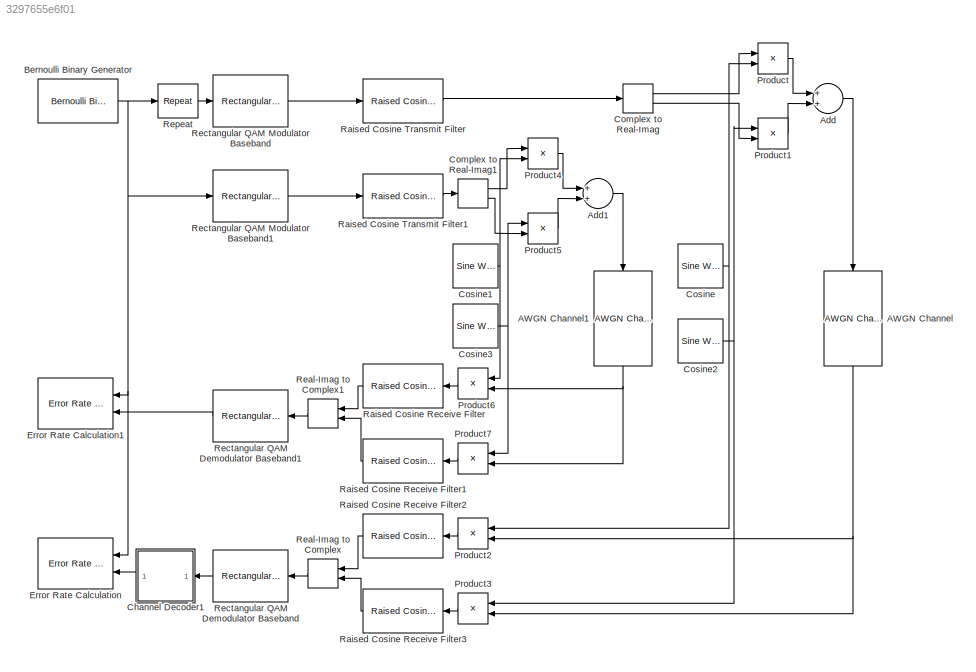
MODEL slx_3297655e6f01
KIND model
CONFIG AbsTol = auto
CONFIG FixedStep = auto
CONFIG InitFcn = BitRate = 4e6;\nM = 16;\nl = log2(M);\nSymbolRate = BitRate / l;\nUpsampleCnt = 8;\nSampleRate = SymbolRate * UpsampleCnt;\nFc = 2.5e6;\nFs = SampleRate;\n\n\nSamplePerFrame = 4000;\nSymbolPerFrame = SamplePerFrame / l;\n\n
CONFIG MaxStep = auto
CONFIG MinStep = auto
CONFIG RelTol = 1e-3
CONFIG SampleTimeConstraint = Unconstrained
CONFIG Solver = VariableStepDiscrete
CONFIG SolverMode = Auto
CONFIG SolverName = VariableStepDiscrete
CONFIG StartTime = 0.0
CONFIG StopTime = 1
BLOCK [Reference] AWGN Channel  REF=commchan3/AWGN
Channel
  EbNodB = 10
  EsNodB = 10
  InputProcessing = Columns as channels (frame based)
  Ports = [1, 1]
  Ps = 1
  SNRdB = SNR
  SourceBlock = commchan3/AWGN\nChannel
  SourceType = AWGN Channel
  Tsym = 4e-6
  UserDataPersistent = on
  bitsPerSym = 4
  noiseMode = Signal to noise ratio  (SNR)
  seed = 67
  variance = 1
BLOCK [Reference] AWGN Channel1  REF=commchan3/AWGN
Channel
  EbNodB = 10
  EsNodB = 10
  InputProcessing = Columns as channels (frame based)
  Ports = [1, 1]
  Ps = 1
  SNRdB = SNR
  SourceBlock = commchan3/AWGN\nChannel
  SourceType = AWGN Channel
  Tsym = 4e-6
  UserDataPersistent = on
  bitsPerSym = 4
  noiseMode = Signal to noise ratio  (SNR)
  seed = 67
  variance = 1
BLOCK [Sum] Add
  InputSameDT = off
  OutDataTypeStr = Inherit: Inherit via internal rule
  Ports = [2, 1]
  SaturateOnIntegerOverflow = off
BLOCK [Sum] Add1
  InputSameDT = off
  OutDataTypeStr = Inherit: Inherit via internal rule
  Ports = [2, 1]
  SaturateOnIntegerOverflow = off
BLOCK [Reference] Bernoulli Binary Generator  REF=commrandsrc2/Bernoulli Binary
Generator
  P = 0.5
  Ports = [0, 1]
  SourceBlock = commrandsrc2/Bernoulli Binary\nGenerator
  SourceType = Bernoulli Binary Generator
  Ts = 1/BitRate
  frameBased = on
  orient = off
  outDataType = double
  sampPerFrame = SamplePerFrame
  seed = 61
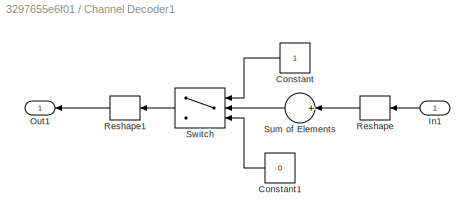
BLOCK [SubSystem] Channel Decoder1
  Ports = [1, 1]
  RequestExecContextInheritance = off
BLOCK [Constant] Channel Decoder1/Constant
BLOCK [Constant] Channel Decoder1/Constant1
  Value = 0
BLOCK [Inport] Channel Decoder1/In1
  IconDisplay = Port number
BLOCK [Outport] Channel Decoder1/Out1
  IconDisplay = Port number
BLOCK [Reshape] Channel Decoder1/Reshape
  OutputDimensionality = Customize
  OutputDimensions = [3,4000]
  Ports = [1, 1]
BLOCK [Reshape] Channel Decoder1/Reshape1
  OutputDimensionality = Column vector (2-D)
  OutputDimensions = [3,4000]
  Ports = [1, 1]
BLOCK [Sum] Channel Decoder1/Sum of Elements
  CollapseMode = Specified dimension
  InputSameDT = off
  Inputs = +
  OutDataTypeStr = Inherit: Inherit via internal rule
  Ports = [1, 1]
  SaturateOnIntegerOverflow = off
BLOCK [Switch] Channel Decoder1/Switch
  Criteria = u2 > Threshold
  InputSameDT = off
  SaturateOnIntegerOverflow = off
  Threshold = 1
BLOCK [ComplexToRealImag] Complex to Real-Imag
  Ports = [1, 2]
BLOCK [ComplexToRealImag] Complex to Real-Imag1
  Ports = [1, 2]
BLOCK [Reference] Cosine  REF=dspsrcs4/Sine Wave
  Amplitude = sqrt(2)
  CompMethod = Trigonometric fcn
  Frequency = Fc
  LastOutDataTypeStr = double
  OutComplex = Real
  OutDataTypeStr = double
  Phase = pi/2
  Ports = [0, 1]
  ResetState = Restart at time zero
  SampleMode = Discrete
  SampleTime = 1/Fs
  SamplesPerFrame = SymbolPerFrame * UpsampleCnt * 3
  SourceBlock = dspsrcs4/Sine Wave
  SourceType = Sine Wave
  TableSize = Speed
  additionalParams = off
  allowOverrides = on
  dataType = double
  fracBitsMode = Best precision
  numFracBits = 15
  udDataType = sfix(16)
  wordLen = 16
BLOCK [Reference] Cosine1  REF=dspsrcs4/Sine Wave
  Amplitude = sqrt(2)
  CompMethod = Trigonometric fcn
  Frequency = Fc
  LastOutDataTypeStr = double
  OutComplex = Real
  OutDataTypeStr = double
  Phase = pi/2
  Ports = [0, 1]
  ResetState = Restart at time zero
  SampleMode = Discrete
  SampleTime = 1/Fs
  SamplesPerFrame = SymbolPerFrame * UpsampleCnt
  SourceBlock = dspsrcs4/Sine Wave
  SourceType = Sine Wave
  TableSize = Speed
  additionalParams = off
  allowOverrides = on
  dataType = double
  fracBitsMode = Best precision
  numFracBits = 15
  udDataType = sfix(16)
  wordLen = 16
BLOCK [Reference] Cosine2  REF=dspsrcs4/Sine Wave
  Amplitude = sqrt(2)
  CompMethod = Trigonometric fcn
  Frequency = Fc
  LastOutDataTypeStr = double
  OutComplex = Real
  OutDataTypeStr = double
  Phase = 0
  Ports = [0, 1]
  ResetState = Restart at time zero
  SampleMode = Discrete
  SampleTime = 1/Fs
  SamplesPerFrame = SymbolPerFrame * UpsampleCnt * 3
  SourceBlock = dspsrcs4/Sine Wave
  SourceType = Sine Wave
  TableSize = Speed
  additionalParams = off
  allowOverrides = on
  dataType = double
  fracBitsMode = Best precision
  numFracBits = 15
  udDataType = sfix(16)
  wordLen = 16
BLOCK [Reference] Cosine3  REF=dspsrcs4/Sine Wave
  Amplitude = sqrt(2)
  CompMethod = Trigonometric fcn
  Frequency = Fc
  LastOutDataTypeStr = double
  OutComplex = Real
  OutDataTypeStr = double
  Phase = 0
  Ports = [0, 1]
  ResetState = Restart at time zero
  SampleMode = Discrete
  SampleTime = 1/Fs
  SamplesPerFrame = SymbolPerFrame * UpsampleCnt
  SourceBlock = dspsrcs4/Sine Wave
  SourceType = Sine Wave
  TableSize = Speed
  additionalParams = off
  allowOverrides = on
  dataType = double
  fracBitsMode = Best precision
  numFracBits = 15
  udDataType = sfix(16)
  wordLen = 16
BLOCK [Reference] Error Rate Calculation  REF=commsink2/Error Rate
Calculation
  N = 6 * UpsampleCnt / 3
  PMode = Workspace
  Ports = [2]
  RsMode2 = off
  SourceBlock = commsink2/Error Rate\nCalculation
  SourceType = Error Rate Calculation
  WsName = ErrorVecChannelCoding
  cp_mode = Entire frame
  maxBits = 1e6
  numErr = 100
  st_delay = 0
  stop = off
  subframe = []
BLOCK [Reference] Error Rate Calculation1  REF=commsink2/Error Rate
Calculation
  N = 6 * UpsampleCnt
  PMode = Workspace
  Ports = [2]
  RsMode2 = off
  SourceBlock = commsink2/Error Rate\nCalculation
  SourceType = Error Rate Calculation
  WsName = ErrorVecNoChannelCoding
  cp_mode = Entire frame
  maxBits = 1e6
  numErr = 100
  st_delay = 0
  stop = off
  subframe = []
BLOCK [Product] Product
  InputSameDT = off
  OutDataTypeStr = Inherit: Inherit via internal rule
  Ports = [2, 1]
  SaturateOnIntegerOverflow = off
BLOCK [Product] Product1
  InputSameDT = off
  OutDataTypeStr = Inherit: Inherit via internal rule
  Ports = [2, 1]
  SaturateOnIntegerOverflow = off
BLOCK [Product] Product2
  InputSameDT = off
  OutDataTypeStr = Inherit: Inherit via internal rule
  Ports = [2, 1]
  SaturateOnIntegerOverflow = off
BLOCK [Product] Product3
  InputSameDT = off
  OutDataTypeStr = Inherit: Inherit via internal rule
  Ports = [2, 1]
  SaturateOnIntegerOverflow = off
BLOCK [Product] Product4
  InputSameDT = off
  OutDataTypeStr = Inherit: Inherit via internal rule
  Ports = [2, 1]
  SaturateOnIntegerOverflow = off
BLOCK [Product] Product5
  InputSameDT = off
  OutDataTypeStr = Inherit: Inherit via internal rule
  Ports = [2, 1]
  SaturateOnIntegerOverflow = off
BLOCK [Product] Product6
  InputSameDT = off
  OutDataTypeStr = Inherit: Inherit via internal rule
  Ports = [2, 1]
  SaturateOnIntegerOverflow = off
BLOCK [Product] Product7
  InputSameDT = off
  OutDataTypeStr = Inherit: Inherit via internal rule
  Ports = [2, 1]
  SaturateOnIntegerOverflow = off
BLOCK [Reference] Raised Cosine Receive Filter  REF=commfilt2/Raised Cosine
Receive Filter
  D = (12)/2
  InputProcessing = Columns as channels (frame based)
  LockScale = off
  N = UpsampleCnt
  Ports = [1, 1]
  R = 0.2
  SourceBlock = commfilt2/Raised Cosine\nReceive Filter
  SourceType = Raised Cosine Receive Filter
  UserDataPersistent = on
  accumFracLength = 30
  accumMode = Same as product output
  accumWordLength = 32
  checkCoeff = off
  checkGain = Normalized
  coeffFracLength = 15
  coeffMode = Same word length as input
  coeffWordLength = 16
  currentFiltSpan = 12
  downFactor = UpsampleCnt
  downOffset = 0
  filtSpan = 12
  filtType = Square root
  filterGain = 1/sqrt(UpsampleCnt)
  framing = Enforce single-rate processing
  launchFVT = on
  outputFracLength = 15
  outputMode = Same as accumulator
  outputWordLength = 16
  overflowMode = off
  prodOutputFracLength = 30
  prodOutputMode = Same as input
  prodOutputWordLength = 32
  rateMode = Downsampling
  roundingMode = Floor
  sampMode = Mute
  saveAsFlag = 0
  variableName = rcRxFilt2
BLOCK [Reference] Raised Cosine Receive Filter1  REF=commfilt2/Raised Cosine
Receive Filter
  D = (12)/2
  InputProcessing = Columns as channels (frame based)
  LockScale = off
  N = UpsampleCnt
  Ports = [1, 1]
  R = 0.2
  SourceBlock = commfilt2/Raised Cosine\nReceive Filter
  SourceType = Raised Cosine Receive Filter
  UserDataPersistent = on
  accumFracLength = 30
  accumMode = Same as product output
  accumWordLength = 32
  checkCoeff = off
  checkGain = Normalized
  coeffFracLength = 15
  coeffMode = Same word length as input
  coeffWordLength = 16
  currentFiltSpan = 12
  downFactor = UpsampleCnt
  downOffset = 0
  filtSpan = 12
  filtType = Square root
  filterGain = 1/sqrt(UpsampleCnt)
  framing = Enforce single-rate processing
  launchFVT = on
  outputFracLength = 15
  outputMode = Same as accumulator
  outputWordLength = 16
  overflowMode = off
  prodOutputFracLength = 30
  prodOutputMode = Same as input
  prodOutputWordLength = 32
  rateMode = Downsampling
  roundingMode = Floor
  sampMode = Mute
  saveAsFlag = 0
  variableName = rcRxFilt3
BLOCK [Reference] Raised Cosine Receive Filter2   REF=commfilt2/Raised Cosine
Receive Filter
  D = (12)/2
  InputProcessing = Columns as channels (frame based)
  LockScale = off
  N = UpsampleCnt
  Ports = [1, 1]
  R = 0.2
  SourceBlock = commfilt2/Raised Cosine\nReceive Filter
  SourceType = Raised Cosine Receive Filter
  UserDataPersistent = on
  accumFracLength = 30
  accumMode = Same as product output
  accumWordLength = 32
  checkCoeff = off
  checkGain = Normalized
  coeffFracLength = 15
  coeffMode = Same word length as input
  coeffWordLength = 16
  currentFiltSpan = 12
  downFactor = UpsampleCnt
  downOffset = 0
  filtSpan = 12
  filtType = Square root
  filterGain = 1/sqrt(UpsampleCnt)
  framing = Enforce single-rate processing
  launchFVT = on
  outputFracLength = 15
  outputMode = Same as accumulator
  outputWordLength = 16
  overflowMode = off
  prodOutputFracLength = 30
  prodOutputMode = Same as input
  prodOutputWordLength = 32
  rateMode = Downsampling
  roundingMode = Floor
  sampMode = Mute
  saveAsFlag = 0
  variableName = rcRxFilt
BLOCK [Reference] Raised Cosine Receive Filter3  REF=commfilt2/Raised Cosine
Receive Filter
  D = (12)/2
  InputProcessing = Columns as channels (frame based)
  LockScale = off
  N = UpsampleCnt
  Ports = [1, 1]
  R = 0.2
  SourceBlock = commfilt2/Raised Cosine\nReceive Filter
  SourceType = Raised Cosine Receive Filter
  UserDataPersistent = on
  accumFracLength = 30
  accumMode = Same as product output
  accumWordLength = 32
  checkCoeff = off
  checkGain = Normalized
  coeffFracLength = 15
  coeffMode = Same word length as input
  coeffWordLength = 16
  currentFiltSpan = 12
  downFactor = UpsampleCnt
  downOffset = 0
  filtSpan = 12
  filtType = Square root
  filterGain = 1/sqrt(UpsampleCnt)
  framing = Enforce single-rate processing
  launchFVT = on
  outputFracLength = 15
  outputMode = Same as accumulator
  outputWordLength = 16
  overflowMode = off
  prodOutputFracLength = 30
  prodOutputMode = Same as input
  prodOutputWordLength = 32
  rateMode = Downsampling
  roundingMode = Floor
  sampMode = Mute
  saveAsFlag = 0
  variableName = rcRxFilt1
BLOCK [Reference] Raised Cosine Transmit Filter  REF=commfilt2/Raised Cosine
Transmit Filter
  D = (12)/2
  InputProcessing = Columns as channels (frame based)
  LockScale = off
  N = UpsampleCnt
  Ports = [1, 1]
  R = 0.2
  SourceBlock = commfilt2/Raised Cosine\nTransmit Filter
  SourceType = Raised Cosine Transmit Filter
  UserDataPersistent = on
  accumFracLength = 30
  accumMode = Inherit via internal rule
  accumWordLength = 32
  checkCoeff = off
  checkGain = Normalized
  coeffFracLength = 15
  coeffMode = Same word length as input
  coeffWordLength = 16
  currentFiltSpan = 12
  filtSpan = 12
  filtType = Square root
  filterGain = sqrt(UpsampleCnt)
  framing = Enforce single-rate processing
  launchFVT = on
  outputFracLength = 15
  outputMode = Same as accumulator
  outputWordLength = 16
  overflowMode = off
  prodOutputFracLength = 30
  prodOutputMode = Inherit via internal rule
  prodOutputWordLength = 32
  roundingMode = Floor
  sampMode = Mute
  saveAsFlag = 0
  variableName = rcTxFilt
BLOCK [Reference] Raised Cosine Transmit Filter1  REF=commfilt2/Raised Cosine
Transmit Filter
  D = (12)/2
  InputProcessing = Columns as channels (frame based)
  LockScale = off
  N = UpsampleCnt
  Ports = [1, 1]
  R = 0.2
  SourceBlock = commfilt2/Raised Cosine\nTransmit Filter
  SourceType = Raised Cosine Transmit Filter
  UserDataPersistent = on
  accumFracLength = 30
  accumMode = Inherit via internal rule
  accumWordLength = 32
  checkCoeff = off
  checkGain = Normalized
  coeffFracLength = 15
  coeffMode = Same word length as input
  coeffWordLength = 16
  currentFiltSpan = 12
  filtSpan = 12
  filtType = Square root
  filterGain = sqrt(UpsampleCnt)
  framing = Enforce single-rate processing
  launchFVT = on
  outputFracLength = 15
  outputMode = Same as accumulator
  outputWordLength = 16
  overflowMode = off
  prodOutputFracLength = 30
  prodOutputMode = Inherit via internal rule
  prodOutputWordLength = 32
  roundingMode = Floor
  sampMode = Mute
  saveAsFlag = 0
  variableName = rcTxFilt1
BLOCK [RealImagToComplex] Real-Imag to Complex
  Ports = [2, 1]
BLOCK [RealImagToComplex] Real-Imag to Complex1
  Ports = [2, 1]
BLOCK [Reference] Rectangular QAM Demodulator Baseband  REF=commdigbbndam3/Rectangular QAM
Demodulator
Baseband
  AvgPow = 1
  Dec = Gray
  DecType = Hard decision
  M = 16
  Mapping = [0:15]
  MinDist = 2
  OutType = Bit
  PeakPow = 1
  Ph = 0
  Ports = [1, 1]
  PowType = Average Power
  SourceBlock = commdigbbndam3/Rectangular QAM\nDemodulator\nBaseband
  SourceType = Rectangular QAM Demodulator Baseband
  VarSource = Dialog
  Variance = 1
  denormFactorDTMode = Same word length as input
  denormFactorWordLen = 16
  derotateFactorDTMode = Same word length as input
  derotateFactorWordLen = 16
  outDtype1 = Inherit via internal rule
  outDtype2 = Inherit via internal rule
  prodOutDTMode = Inherit via internal rule
  prodOutOverflowMode = Wrap
  prodOutRoundingMode = Floor
  prodOutWordLen = 32
  sumDTMode = Inherit via internal rule
  sumWordLen = 32
BLOCK [Reference] Rectangular QAM Demodulator Baseband1  REF=commdigbbndam3/Rectangular QAM
Demodulator
Baseband
  AvgPow = 1
  Dec = Gray
  DecType = Hard decision
  M = 16
  Mapping = [0:15]
  MinDist = 2
  OutType = Bit
  PeakPow = 1
  Ph = 0
  Ports = [1, 1]
  PowType = Average Power
  SourceBlock = commdigbbndam3/Rectangular QAM\nDemodulator\nBaseband
  SourceType = Rectangular QAM Demodulator Baseband
  VarSource = Dialog
  Variance = 1
  denormFactorDTMode = Same word length as input
  denormFactorWordLen = 16
  derotateFactorDTMode = Same word length as input
  derotateFactorWordLen = 16
  outDtype1 = Inherit via internal rule
  outDtype2 = Inherit via internal rule
  prodOutDTMode = Inherit via internal rule
  prodOutOverflowMode = Wrap
  prodOutRoundingMode = Floor
  prodOutWordLen = 32
  sumDTMode = Inherit via internal rule
  sumWordLen = 32
BLOCK [Reference] Rectangular QAM Modulator Baseband  REF=commdigbbndam3/Rectangular QAM
Modulator
Baseband
  AvgPow = 1
  Enc = Gray
  InType = Bit
  M = M
  Mapping = [0:15]
  MinDist = 2
  PeakPow = 1
  Ph = 0
  Ports = [1, 1]
  PowType = Average Power
  SourceBlock = commdigbbndam3/Rectangular QAM\nModulator\nBaseband
  SourceType = Rectangular QAM Modulator Baseband
  outDtype = double
  outFracLen = 15
  outFracLenMode = Best precision
  outUDDataType = sfix(16)
  outWordLen = 16
BLOCK [Reference] Rectangular QAM Modulator Baseband1  REF=commdigbbndam3/Rectangular QAM
Modulator
Baseband
  AvgPow = 1
  Enc = Gray
  InType = Bit
  M = M
  Mapping = [0:15]
  MinDist = 2
  PeakPow = 1
  Ph = 0
  Ports = [1, 1]
  PowType = Average Power
  SourceBlock = commdigbbndam3/Rectangular QAM\nModulator\nBaseband
  SourceType = Rectangular QAM Modulator Baseband
  outDtype = double
  outFracLen = 15
  outFracLenMode = Best precision
  outUDDataType = sfix(16)
  outWordLen = 16
BLOCK [Reference] Repeat  REF=dspsigops/Repeat
  InputProcessing = Columns as channels (frame based)
  N = 3
  Ports = [1, 1]
  RateOptions = Enforce single-rate processing
  SourceBlock = dspsigops/Repeat
  SourceType = Repeat
  UserDataPersistent = on
  ic = 0
  mode = Unused parameter value
NET AWGN Channel1:1 -> Product6:2, Product7:2
NET AWGN Channel:1 -> Product2:2, Product3:2
LINE Add1:1 -> AWGN Channel1:1
LINE Add:1 -> AWGN Channel:1
NET Bernoulli Binary Generator:1 -> Error Rate Calculation1:1, Error Rate Calculation:1, Rectangular QAM Modulator Baseband1:1, Repeat:1
LINE Channel Decoder1/Constant1:1 -> Channel Decoder1/Switch:3
LINE Channel Decoder1/Constant:1 -> Channel Decoder1/Switch:1
LINE Channel Decoder1/In1:1 -> Channel Decoder1/Reshape:1
LINE Channel Decoder1/Reshape1:1 -> Channel Decoder1/Out1:1
LINE Channel Decoder1/Reshape:1 -> Channel Decoder1/Sum of Elements:1
LINE Channel Decoder1/Sum of Elements:1 -> Channel Decoder1/Switch:2
LINE Channel Decoder1/Switch:1 -> Channel Decoder1/Reshape1:1
LINE Channel Decoder1:1 -> Error Rate Calculation:2
LINE Complex to Real-Imag1:1 -> Product4:1
LINE Complex to Real-Imag1:2 -> Product5:2
LINE Complex to Real-Imag:1 -> Product:1
LINE Complex to Real-Imag:2 -> Product1:2
NET Cosine1:1 -> Product4:2, Product6:1
NET Cosine2:1 -> Product1:1, Product3:1
NET Cosine3:1 -> Product5:1, Product7:1
NET Cosine:1 -> Product2:1, Product:2
LINE Product1:1 -> Add:2
LINE Product2:1 -> Raised Cosine Receive Filter2 :1
LINE Product3:1 -> Raised Cosine Receive Filter3:1
LINE Product4:1 -> Add1:1
LINE Product5:1 -> Add1:2
LINE Product6:1 -> Raised Cosine Receive Filter:1
LINE Product7:1 -> Raised Cosine Receive Filter1:1
LINE Product:1 -> Add:1
LINE Raised Cosine Receive Filter1:1 -> Real-Imag to Complex1:2
LINE Raised Cosine Receive Filter2 :1 -> Real-Imag to Complex:1
LINE Raised Cosine Receive Filter3:1 -> Real-Imag to Complex:2
LINE Raised Cosine Receive Filter:1 -> Real-Imag to Complex1:1
LINE Raised Cosine Transmit Filter1:1 -> Complex to Real-Imag1:1
LINE Raised Cosine Transmit Filter:1 -> Complex to Real-Imag:1
LINE Real-Imag to Complex1:1 -> Rectangular QAM Demodulator Baseband1:1
LINE Real-Imag to Complex:1 -> Rectangular QAM Demodulator Baseband:1
LINE Rectangular QAM Demodulator Baseband1:1 -> Error Rate Calculation1:2
LINE Rectangular QAM Demodulator Baseband:1 -> Channel Decoder1:1
LINE Rectangular QAM Modulator Baseband1:1 -> Raised Cosine Transmit Filter1:1
LINE Rectangular QAM Modulator Baseband:1 -> Raised Cosine Transmit Filter:1
LINE Repeat:1 -> Rectangular QAM Modulator Baseband:1
note: NET lines group one-source signal fan-out (src -> all destinations, sorted); 1:1 wires keep LINE
